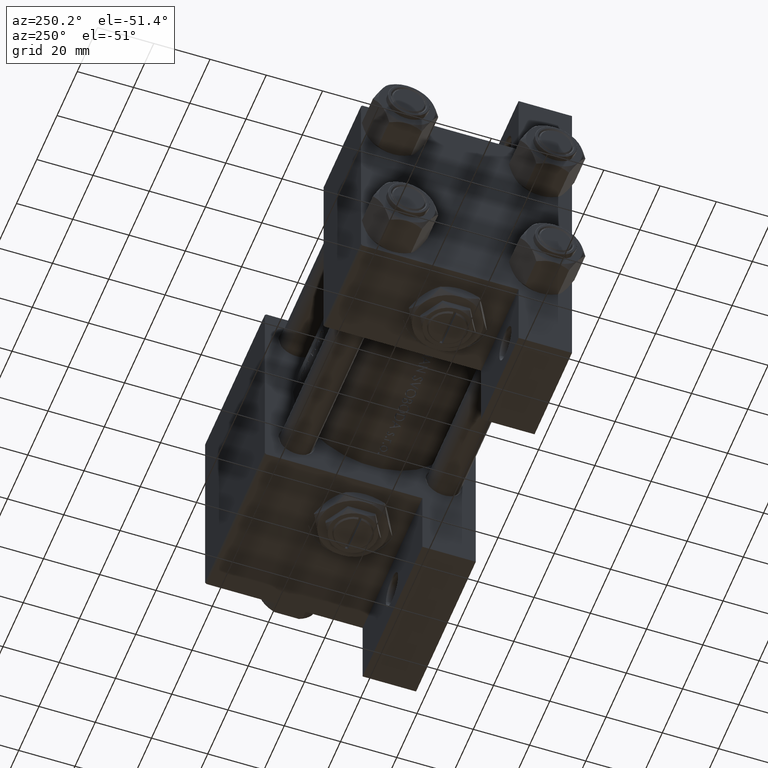
[diagram: clean part render]
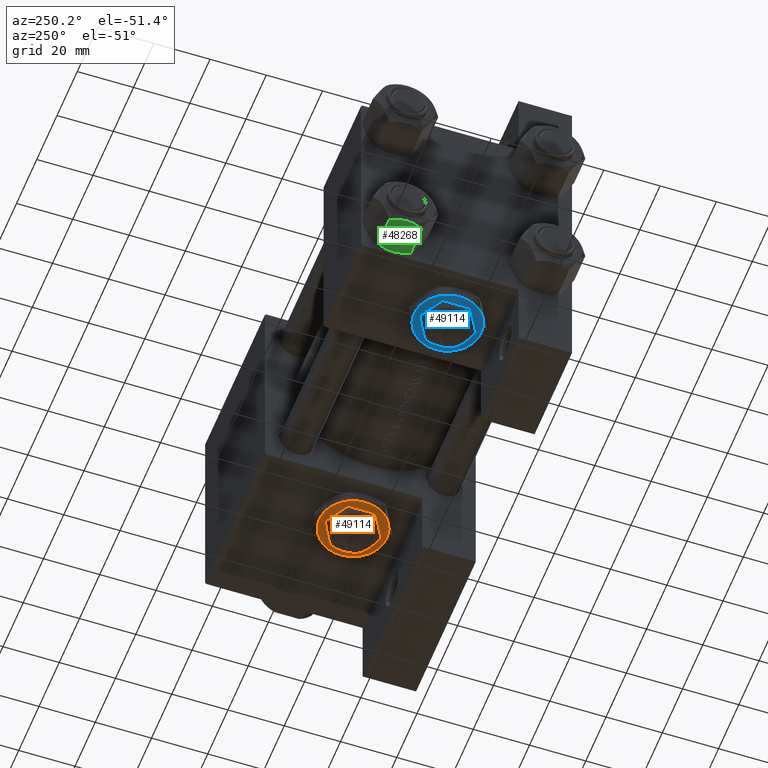
[diagram: same view with three faces highlighted in distinct colors, each labeled with its STEP entity id]
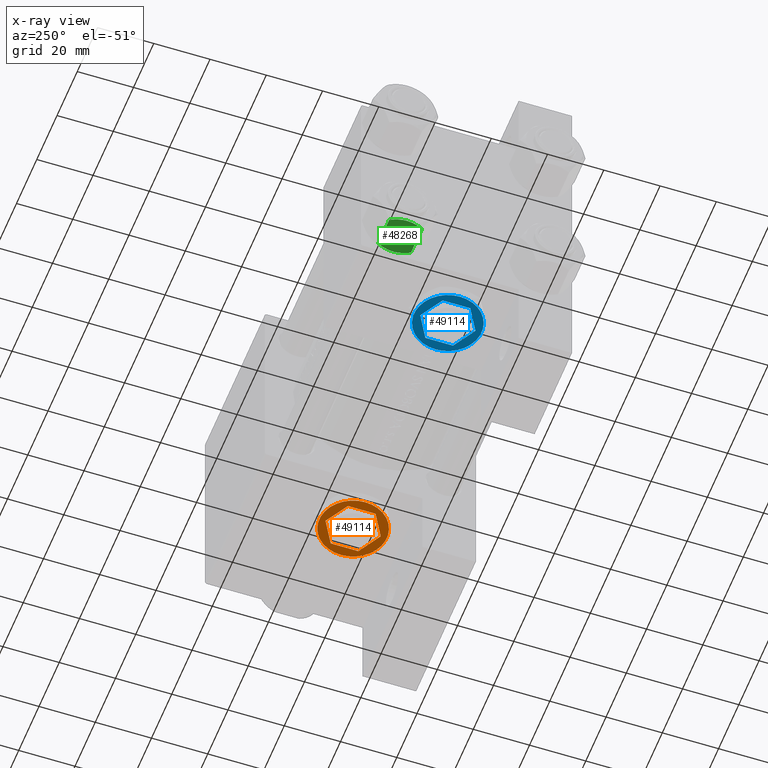
[diagram: x-ray of the same camera — body ghosted, the three highlighted faces saturated]
A machine part, auxiliary view with three faces highlighted in distinct colors.
The next image is the same camera in x-ray (body ghosted, the three faces saturated) — at least one of them is partly hidden behind the body in this view.
Their STEP definitions:

[orange] entity #49114 — the highlighted planar face has unit normal (0, 0, -1).
#66 = ORIENTED_EDGE ( 'NONE', *, *, #16778, .F. ) ;
#1803 = ORIENTED_EDGE ( 'NONE', *, *, #47435, .T. ) ;
#2400 = CIRCLE ( 'NONE', #22422, 12.00000000000000178 ) ;
#2935 = CARTESIAN_POINT ( 'NONE',  ( -8.500000000000000000, 4.907477288111818048, 4.299999999999999822 ) ) ;
#3061 = ORIENTED_EDGE ( 'NONE', *, *, #17577, .T. ) ;
#3365 = CARTESIAN_POINT ( 'NONE',  ( 8.500000000000000000, -4.907477288111819824, 4.299999999999999822 ) ) ;
#4009 = EDGE_CURVE ( 'NONE', #39390, #40871, #25955, .T. ) ;
#4302 = EDGE_CURVE ( 'NONE', #8385, #39390, #48737, .T. ) ;
#4424 = VERTEX_POINT ( 'NONE', #19640 ) ;
#5140 = LINE ( 'NONE', #12623, #43508 ) ;
#5230 = AXIS2_PLACEMENT_3D ( 'NONE', #39682, #5372, #20631 ) ;
#5372 = DIRECTION ( 'NONE',  ( 0.000000000000000000, 0.000000000000000000, 1.000000000000000000 ) ) ;
#5854 = DIRECTION ( 'NONE',  ( 1.000000000000000000, 0.000000000000000000, 0.000000000000000000 ) ) ;
#5898 = EDGE_LOOP ( 'NONE', ( #19397, #47857, #30561, #3061, #1803, #6181 ) ) ;
#5953 = CARTESIAN_POINT ( 'NONE',  ( 0.000000000000000000, 9.814954576223637872, 4.299999999999999822 ) ) ;
#6181 = ORIENTED_EDGE ( 'NONE', *, *, #10807, .T. ) ;
#6572 = DIRECTION ( 'NONE',  ( 0.000000000000000000, 0.000000000000000000, 1.000000000000000000 ) ) ;
#6989 = VERTEX_POINT ( 'NONE', #22276 ) ;
#8371 = EDGE_CURVE ( 'NONE', #4424, #10817, #9674, .T. ) ;
#8385 = VERTEX_POINT ( 'NONE', #5953 ) ;
#8622 = VERTEX_POINT ( 'NONE', #26419 ) ;
#9073 = CARTESIAN_POINT ( 'NONE',  ( -6.000000000000001776, 10.39230484541326405, 4.299999999999999822 ) ) ;
#9353 = CARTESIAN_POINT ( 'NONE',  ( 11.99999999999999645, 3.004629197474318063E-15, 4.299999999999999822 ) ) ;
#9674 = CIRCLE ( 'NONE', #23228, 12.00000000000000178 ) ;
#10487 = ORIENTED_EDGE ( 'NONE', *, *, #4009, .F. ) ;
#10807 = EDGE_CURVE ( 'NONE', #45963, #4424, #2400, .T. ) ;
#10817 = VERTEX_POINT ( 'NONE', #9353 ) ;
#10886 = DIRECTION ( 'NONE',  ( -0.8660254037844385966, -0.5000000000000000000, 0.000000000000000000 ) ) ;
#11208 = CARTESIAN_POINT ( 'NONE',  ( 6.000000000000000888, 10.39230484541326582, 4.299999999999999822 ) ) ;
#12623 = CARTESIAN_POINT ( 'NONE',  ( -8.500000000000000000, -4.907477288111819824, 4.299999999999999822 ) ) ;
#13036 = DIRECTION ( 'NONE',  ( 1.000000000000000000, 0.000000000000000000, 0.000000000000000000 ) ) ;
#15376 = CARTESIAN_POINT ( 'NONE',  ( 8.499999999999996447, 4.907477288111821601, 4.299999999999999822 ) ) ;
#15554 = AXIS2_PLACEMENT_3D ( 'NONE', #16597, #32361, #17350 ) ;
#16597 = CARTESIAN_POINT ( 'NONE',  ( 0.000000000000000000, 0.000000000000000000, 4.299999999999999822 ) ) ;
#16778 = EDGE_CURVE ( 'NONE', #8622, #8385, #30886, .T. ) ;
#17350 = DIRECTION ( 'NONE',  ( 1.000000000000000000, 0.000000000000000000, 0.000000000000000000 ) ) ;
#17577 = EDGE_CURVE ( 'NONE', #19569, #6989, #20278, .T. ) ;
#17871 = AXIS2_PLACEMENT_3D ( 'NONE', #49075, #31205, #23955 ) ;
#18660 = VERTEX_POINT ( 'NONE', #29433 ) ;
#18953 = CARTESIAN_POINT ( 'NONE',  ( -8.500000000000000000, -4.907477288111819824, 4.299999999999999822 ) ) ;
#19228 = EDGE_CURVE ( 'NONE', #40871, #18660, #5140, .T. ) ;
#19397 = ORIENTED_EDGE ( 'NONE', *, *, #8371, .T. ) ;
#19569 = VERTEX_POINT ( 'NONE', #9073 ) ;
#19640 = CARTESIAN_POINT ( 'NONE',  ( 5.999999999999998224, -10.39230484541326760, 4.299999999999999822 ) ) ;
#20278 = CIRCLE ( 'NONE', #17871, 12.00000000000000178 ) ;
#20631 = DIRECTION ( 'NONE',  ( 1.000000000000000000, 0.000000000000000000, -0.000000000000000000 ) ) ;
#20825 = LINE ( 'NONE', #36350, #25907 ) ;
#22040 = EDGE_CURVE ( 'NONE', #24520, #19569, #24443, .T. ) ;
#22276 = CARTESIAN_POINT ( 'NONE',  ( -12.00000000000000178, 0.000000000000000000, 4.299999999999999822 ) ) ;
#22422 = AXIS2_PLACEMENT_3D ( 'NONE', #29335, #6572, #5854 ) ;
#22925 = CARTESIAN_POINT ( 'NONE',  ( -6.000000000000000000, -10.39230484541326582, 4.299999999999999822 ) ) ;
#23171 = EDGE_CURVE ( 'NONE', #18660, #45886, #20825, .T. ) ;
#23228 = AXIS2_PLACEMENT_3D ( 'NONE', #35496, #43040, #34990 ) ;
#23410 = VECTOR ( 'NONE', #34656, 1000.000000000000114 ) ;
#23875 = FACE_BOUND ( 'NONE', #38569, .T. ) ;
#23931 = ORIENTED_EDGE ( 'NONE', *, *, #4302, .F. ) ;
#23955 = DIRECTION ( 'NONE',  ( 1.000000000000000000, 0.000000000000000000, 0.000000000000000000 ) ) ;
#24378 = FACE_OUTER_BOUND ( 'NONE', #5898, .T. ) ;
#24443 = CIRCLE ( 'NONE', #43666, 12.00000000000000178 ) ;
#24520 = VERTEX_POINT ( 'NONE', #11208 ) ;
#24566 = DIRECTION ( 'NONE',  ( 0.000000000000000000, 0.000000000000000000, 1.000000000000000000 ) ) ;
#25907 = VECTOR ( 'NONE', #47901, 1000.000000000000114 ) ;
#25955 = LINE ( 'NONE', #2935, #38300 ) ;
#26045 = AXIS2_PLACEMENT_3D ( 'NONE', #45426, #39984, #39747 ) ;
#26419 = CARTESIAN_POINT ( 'NONE',  ( 8.499999999999996447, 4.907477288111821601, 4.299999999999999822 ) ) ;
#26802 = CARTESIAN_POINT ( 'NONE',  ( -8.500000000000000000, 4.907477288111818048, 4.299999999999999822 ) ) ;
#27001 = EDGE_CURVE ( 'NONE', #10817, #24520, #37254, .T. ) ;
#27894 = DIRECTION ( 'NONE',  ( 0.8660254037844385966, -0.5000000000000001110, 0.000000000000000000 ) ) ;
#29335 = CARTESIAN_POINT ( 'NONE',  ( 0.000000000000000000, 0.000000000000000000, 4.299999999999999822 ) ) ;
#29433 = CARTESIAN_POINT ( 'NONE',  ( -2.644623992720612091E-15, -9.814954576223637872, 4.299999999999999822 ) ) ;
#29948 = DIRECTION ( 'NONE',  ( 0.000000000000000000, -1.000000000000000000, 0.000000000000000000 ) ) ;
#30561 = ORIENTED_EDGE ( 'NONE', *, *, #22040, .T. ) ;
#30862 = LINE ( 'NONE', #3365, #36885 ) ;
#30886 = LINE ( 'NONE', #15376, #23410 ) ;
#31205 = DIRECTION ( 'NONE',  ( 0.000000000000000000, 0.000000000000000000, 1.000000000000000000 ) ) ;
#32361 = DIRECTION ( 'NONE',  ( 0.000000000000000000, 0.000000000000000000, 1.000000000000000000 ) ) ;
#34656 = DIRECTION ( 'NONE',  ( -0.8660254037844387076, 0.4999999999999998890, 0.000000000000000000 ) ) ;
#34990 = DIRECTION ( 'NONE',  ( 1.000000000000000000, 0.000000000000000000, 0.000000000000000000 ) ) ;
#35496 = CARTESIAN_POINT ( 'NONE',  ( 0.000000000000000000, 0.000000000000000000, 4.299999999999999822 ) ) ;
#36350 = CARTESIAN_POINT ( 'NONE',  ( -2.644623992720612091E-15, -9.814954576223637872, 4.299999999999999822 ) ) ;
#36885 = VECTOR ( 'NONE', #48980, 1000.000000000000000 ) ;
#37186 = CARTESIAN_POINT ( 'NONE',  ( 0.000000000000000000, 9.814954576223637872, 4.299999999999999822 ) ) ;
#37254 = CIRCLE ( 'NONE', #26045, 12.00000000000000178 ) ;
#37515 = VECTOR ( 'NONE', #10886, 1000.000000000000227 ) ;
#38300 = VECTOR ( 'NONE', #29948, 1000.000000000000000 ) ;
#38569 = EDGE_LOOP ( 'NONE', ( #23931, #66, #46826, #42424, #45372, #10487 ) ) ;
#39082 = EDGE_CURVE ( 'NONE', #45886, #8622, #30862, .T. ) ;
#39170 = PLANE ( 'NONE',  #5230 ) ;
#39390 = VERTEX_POINT ( 'NONE', #26802 ) ;
#39682 = CARTESIAN_POINT ( 'NONE',  ( 0.000000000000000000, 0.000000000000000000, 4.299999999999999822 ) ) ;
#39747 = DIRECTION ( 'NONE',  ( 1.000000000000000000, 0.000000000000000000, 0.000000000000000000 ) ) ;
#39984 = DIRECTION ( 'NONE',  ( 0.000000000000000000, 0.000000000000000000, 1.000000000000000000 ) ) ;
#40871 = VERTEX_POINT ( 'NONE', #18953 ) ;
#42424 = ORIENTED_EDGE ( 'NONE', *, *, #23171, .F. ) ;
#42809 = CIRCLE ( 'NONE', #15554, 12.00000000000000178 ) ;
#43040 = DIRECTION ( 'NONE',  ( 0.000000000000000000, 0.000000000000000000, 1.000000000000000000 ) ) ;
#43508 = VECTOR ( 'NONE', #27894, 1000.000000000000114 ) ;
#43666 = AXIS2_PLACEMENT_3D ( 'NONE', #47889, #24566, #13036 ) ;
#45372 = ORIENTED_EDGE ( 'NONE', *, *, #19228, .F. ) ;
#45426 = CARTESIAN_POINT ( 'NONE',  ( 0.000000000000000000, 0.000000000000000000, 4.299999999999999822 ) ) ;
#45744 = CARTESIAN_POINT ( 'NONE',  ( 8.500000000000000000, -4.907477288111819824, 4.299999999999999822 ) ) ;
#45886 = VERTEX_POINT ( 'NONE', #45744 ) ;
#45963 = VERTEX_POINT ( 'NONE', #22925 ) ;
#46826 = ORIENTED_EDGE ( 'NONE', *, *, #39082, .F. ) ;
#47435 = EDGE_CURVE ( 'NONE', #6989, #45963, #42809, .T. ) ;
#47857 = ORIENTED_EDGE ( 'NONE', *, *, #27001, .T. ) ;
#47889 = CARTESIAN_POINT ( 'NONE',  ( 0.000000000000000000, 0.000000000000000000, 4.299999999999999822 ) ) ;
#47901 = DIRECTION ( 'NONE',  ( 0.8660254037844388186, 0.4999999999999997224, 0.000000000000000000 ) ) ;
#48737 = LINE ( 'NONE', #37186, #37515 ) ;
#48980 = DIRECTION ( 'NONE',  ( -3.534857879381550604E-16, 1.000000000000000000, 0.000000000000000000 ) ) ;
#49075 = CARTESIAN_POINT ( 'NONE',  ( 0.000000000000000000, 0.000000000000000000, 4.299999999999999822 ) ) ;
#49114 = ADVANCED_FACE ( 'NONE', ( #24378, #23875 ), #39170, .T. ) ;

[blue] entity #49114 — the highlighted planar face has unit normal (0, 0, -1).
#66 = ORIENTED_EDGE ( 'NONE', *, *, #16778, .F. ) ;
#1803 = ORIENTED_EDGE ( 'NONE', *, *, #47435, .T. ) ;
#2400 = CIRCLE ( 'NONE', #22422, 12.00000000000000178 ) ;
#2935 = CARTESIAN_POINT ( 'NONE',  ( -8.500000000000000000, 4.907477288111818048, 4.299999999999999822 ) ) ;
#3061 = ORIENTED_EDGE ( 'NONE', *, *, #17577, .T. ) ;
#3365 = CARTESIAN_POINT ( 'NONE',  ( 8.500000000000000000, -4.907477288111819824, 4.299999999999999822 ) ) ;
#4009 = EDGE_CURVE ( 'NONE', #39390, #40871, #25955, .T. ) ;
#4302 = EDGE_CURVE ( 'NONE', #8385, #39390, #48737, .T. ) ;
#4424 = VERTEX_POINT ( 'NONE', #19640 ) ;
#5140 = LINE ( 'NONE', #12623, #43508 ) ;
#5230 = AXIS2_PLACEMENT_3D ( 'NONE', #39682, #5372, #20631 ) ;
#5372 = DIRECTION ( 'NONE',  ( 0.000000000000000000, 0.000000000000000000, 1.000000000000000000 ) ) ;
#5854 = DIRECTION ( 'NONE',  ( 1.000000000000000000, 0.000000000000000000, 0.000000000000000000 ) ) ;
#5898 = EDGE_LOOP ( 'NONE', ( #19397, #47857, #30561, #3061, #1803, #6181 ) ) ;
#5953 = CARTESIAN_POINT ( 'NONE',  ( 0.000000000000000000, 9.814954576223637872, 4.299999999999999822 ) ) ;
#6181 = ORIENTED_EDGE ( 'NONE', *, *, #10807, .T. ) ;
#6572 = DIRECTION ( 'NONE',  ( 0.000000000000000000, 0.000000000000000000, 1.000000000000000000 ) ) ;
#6989 = VERTEX_POINT ( 'NONE', #22276 ) ;
#8371 = EDGE_CURVE ( 'NONE', #4424, #10817, #9674, .T. ) ;
#8385 = VERTEX_POINT ( 'NONE', #5953 ) ;
#8622 = VERTEX_POINT ( 'NONE', #26419 ) ;
#9073 = CARTESIAN_POINT ( 'NONE',  ( -6.000000000000001776, 10.39230484541326405, 4.299999999999999822 ) ) ;
#9353 = CARTESIAN_POINT ( 'NONE',  ( 11.99999999999999645, 3.004629197474318063E-15, 4.299999999999999822 ) ) ;
#9674 = CIRCLE ( 'NONE', #23228, 12.00000000000000178 ) ;
#10487 = ORIENTED_EDGE ( 'NONE', *, *, #4009, .F. ) ;
#10807 = EDGE_CURVE ( 'NONE', #45963, #4424, #2400, .T. ) ;
#10817 = VERTEX_POINT ( 'NONE', #9353 ) ;
#10886 = DIRECTION ( 'NONE',  ( -0.8660254037844385966, -0.5000000000000000000, 0.000000000000000000 ) ) ;
#11208 = CARTESIAN_POINT ( 'NONE',  ( 6.000000000000000888, 10.39230484541326582, 4.299999999999999822 ) ) ;
#12623 = CARTESIAN_POINT ( 'NONE',  ( -8.500000000000000000, -4.907477288111819824, 4.299999999999999822 ) ) ;
#13036 = DIRECTION ( 'NONE',  ( 1.000000000000000000, 0.000000000000000000, 0.000000000000000000 ) ) ;
#15376 = CARTESIAN_POINT ( 'NONE',  ( 8.499999999999996447, 4.907477288111821601, 4.299999999999999822 ) ) ;
#15554 = AXIS2_PLACEMENT_3D ( 'NONE', #16597, #32361, #17350 ) ;
#16597 = CARTESIAN_POINT ( 'NONE',  ( 0.000000000000000000, 0.000000000000000000, 4.299999999999999822 ) ) ;
#16778 = EDGE_CURVE ( 'NONE', #8622, #8385, #30886, .T. ) ;
#17350 = DIRECTION ( 'NONE',  ( 1.000000000000000000, 0.000000000000000000, 0.000000000000000000 ) ) ;
#17577 = EDGE_CURVE ( 'NONE', #19569, #6989, #20278, .T. ) ;
#17871 = AXIS2_PLACEMENT_3D ( 'NONE', #49075, #31205, #23955 ) ;
#18660 = VERTEX_POINT ( 'NONE', #29433 ) ;
#18953 = CARTESIAN_POINT ( 'NONE',  ( -8.500000000000000000, -4.907477288111819824, 4.299999999999999822 ) ) ;
#19228 = EDGE_CURVE ( 'NONE', #40871, #18660, #5140, .T. ) ;
#19397 = ORIENTED_EDGE ( 'NONE', *, *, #8371, .T. ) ;
#19569 = VERTEX_POINT ( 'NONE', #9073 ) ;
#19640 = CARTESIAN_POINT ( 'NONE',  ( 5.999999999999998224, -10.39230484541326760, 4.299999999999999822 ) ) ;
#20278 = CIRCLE ( 'NONE', #17871, 12.00000000000000178 ) ;
#20631 = DIRECTION ( 'NONE',  ( 1.000000000000000000, 0.000000000000000000, -0.000000000000000000 ) ) ;
#20825 = LINE ( 'NONE', #36350, #25907 ) ;
#22040 = EDGE_CURVE ( 'NONE', #24520, #19569, #24443, .T. ) ;
#22276 = CARTESIAN_POINT ( 'NONE',  ( -12.00000000000000178, 0.000000000000000000, 4.299999999999999822 ) ) ;
#22422 = AXIS2_PLACEMENT_3D ( 'NONE', #29335, #6572, #5854 ) ;
#22925 = CARTESIAN_POINT ( 'NONE',  ( -6.000000000000000000, -10.39230484541326582, 4.299999999999999822 ) ) ;
#23171 = EDGE_CURVE ( 'NONE', #18660, #45886, #20825, .T. ) ;
#23228 = AXIS2_PLACEMENT_3D ( 'NONE', #35496, #43040, #34990 ) ;
#23410 = VECTOR ( 'NONE', #34656, 1000.000000000000114 ) ;
#23875 = FACE_BOUND ( 'NONE', #38569, .T. ) ;
#23931 = ORIENTED_EDGE ( 'NONE', *, *, #4302, .F. ) ;
#23955 = DIRECTION ( 'NONE',  ( 1.000000000000000000, 0.000000000000000000, 0.000000000000000000 ) ) ;
#24378 = FACE_OUTER_BOUND ( 'NONE', #5898, .T. ) ;
#24443 = CIRCLE ( 'NONE', #43666, 12.00000000000000178 ) ;
#24520 = VERTEX_POINT ( 'NONE', #11208 ) ;
#24566 = DIRECTION ( 'NONE',  ( 0.000000000000000000, 0.000000000000000000, 1.000000000000000000 ) ) ;
#25907 = VECTOR ( 'NONE', #47901, 1000.000000000000114 ) ;
#25955 = LINE ( 'NONE', #2935, #38300 ) ;
#26045 = AXIS2_PLACEMENT_3D ( 'NONE', #45426, #39984, #39747 ) ;
#26419 = CARTESIAN_POINT ( 'NONE',  ( 8.499999999999996447, 4.907477288111821601, 4.299999999999999822 ) ) ;
#26802 = CARTESIAN_POINT ( 'NONE',  ( -8.500000000000000000, 4.907477288111818048, 4.299999999999999822 ) ) ;
#27001 = EDGE_CURVE ( 'NONE', #10817, #24520, #37254, .T. ) ;
#27894 = DIRECTION ( 'NONE',  ( 0.8660254037844385966, -0.5000000000000001110, 0.000000000000000000 ) ) ;
#29335 = CARTESIAN_POINT ( 'NONE',  ( 0.000000000000000000, 0.000000000000000000, 4.299999999999999822 ) ) ;
#29433 = CARTESIAN_POINT ( 'NONE',  ( -2.644623992720612091E-15, -9.814954576223637872, 4.299999999999999822 ) ) ;
#29948 = DIRECTION ( 'NONE',  ( 0.000000000000000000, -1.000000000000000000, 0.000000000000000000 ) ) ;
#30561 = ORIENTED_EDGE ( 'NONE', *, *, #22040, .T. ) ;
#30862 = LINE ( 'NONE', #3365, #36885 ) ;
#30886 = LINE ( 'NONE', #15376, #23410 ) ;
#31205 = DIRECTION ( 'NONE',  ( 0.000000000000000000, 0.000000000000000000, 1.000000000000000000 ) ) ;
#32361 = DIRECTION ( 'NONE',  ( 0.000000000000000000, 0.000000000000000000, 1.000000000000000000 ) ) ;
#34656 = DIRECTION ( 'NONE',  ( -0.8660254037844387076, 0.4999999999999998890, 0.000000000000000000 ) ) ;
#34990 = DIRECTION ( 'NONE',  ( 1.000000000000000000, 0.000000000000000000, 0.000000000000000000 ) ) ;
#35496 = CARTESIAN_POINT ( 'NONE',  ( 0.000000000000000000, 0.000000000000000000, 4.299999999999999822 ) ) ;
#36350 = CARTESIAN_POINT ( 'NONE',  ( -2.644623992720612091E-15, -9.814954576223637872, 4.299999999999999822 ) ) ;
#36885 = VECTOR ( 'NONE', #48980, 1000.000000000000000 ) ;
#37186 = CARTESIAN_POINT ( 'NONE',  ( 0.000000000000000000, 9.814954576223637872, 4.299999999999999822 ) ) ;
#37254 = CIRCLE ( 'NONE', #26045, 12.00000000000000178 ) ;
#37515 = VECTOR ( 'NONE', #10886, 1000.000000000000227 ) ;
#38300 = VECTOR ( 'NONE', #29948, 1000.000000000000000 ) ;
#38569 = EDGE_LOOP ( 'NONE', ( #23931, #66, #46826, #42424, #45372, #10487 ) ) ;
#39082 = EDGE_CURVE ( 'NONE', #45886, #8622, #30862, .T. ) ;
#39170 = PLANE ( 'NONE',  #5230 ) ;
#39390 = VERTEX_POINT ( 'NONE', #26802 ) ;
#39682 = CARTESIAN_POINT ( 'NONE',  ( 0.000000000000000000, 0.000000000000000000, 4.299999999999999822 ) ) ;
#39747 = DIRECTION ( 'NONE',  ( 1.000000000000000000, 0.000000000000000000, 0.000000000000000000 ) ) ;
#39984 = DIRECTION ( 'NONE',  ( 0.000000000000000000, 0.000000000000000000, 1.000000000000000000 ) ) ;
#40871 = VERTEX_POINT ( 'NONE', #18953 ) ;
#42424 = ORIENTED_EDGE ( 'NONE', *, *, #23171, .F. ) ;
#42809 = CIRCLE ( 'NONE', #15554, 12.00000000000000178 ) ;
#43040 = DIRECTION ( 'NONE',  ( 0.000000000000000000, 0.000000000000000000, 1.000000000000000000 ) ) ;
#43508 = VECTOR ( 'NONE', #27894, 1000.000000000000114 ) ;
#43666 = AXIS2_PLACEMENT_3D ( 'NONE', #47889, #24566, #13036 ) ;
#45372 = ORIENTED_EDGE ( 'NONE', *, *, #19228, .F. ) ;
#45426 = CARTESIAN_POINT ( 'NONE',  ( 0.000000000000000000, 0.000000000000000000, 4.299999999999999822 ) ) ;
#45744 = CARTESIAN_POINT ( 'NONE',  ( 8.500000000000000000, -4.907477288111819824, 4.299999999999999822 ) ) ;
#45886 = VERTEX_POINT ( 'NONE', #45744 ) ;
#45963 = VERTEX_POINT ( 'NONE', #22925 ) ;
#46826 = ORIENTED_EDGE ( 'NONE', *, *, #39082, .F. ) ;
#47435 = EDGE_CURVE ( 'NONE', #6989, #45963, #42809, .T. ) ;
#47857 = ORIENTED_EDGE ( 'NONE', *, *, #27001, .T. ) ;
#47889 = CARTESIAN_POINT ( 'NONE',  ( 0.000000000000000000, 0.000000000000000000, 4.299999999999999822 ) ) ;
#47901 = DIRECTION ( 'NONE',  ( 0.8660254037844388186, 0.4999999999999997224, 0.000000000000000000 ) ) ;
#48737 = LINE ( 'NONE', #37186, #37515 ) ;
#48980 = DIRECTION ( 'NONE',  ( -3.534857879381550604E-16, 1.000000000000000000, 0.000000000000000000 ) ) ;
#49075 = CARTESIAN_POINT ( 'NONE',  ( 0.000000000000000000, 0.000000000000000000, 4.299999999999999822 ) ) ;
#49114 = ADVANCED_FACE ( 'NONE', ( #24378, #23875 ), #39170, .T. ) ;

[green] entity #48268 — the highlighted planar face has unit normal (0, -0, 1).
#577 = VERTEX_POINT ( 'NONE', #32331 ) ;
#1025 = CARTESIAN_POINT ( 'NONE',  ( -0.2543996698847483806, -10.06321519197517667, -14.00000000000000355 ) ) ;
#2329 = EDGE_CURVE ( 'NONE', #12649, #49324, #38340, .T. ) ;
#2741 = VERTEX_POINT ( 'NONE', #4769 ) ;
#4769 = CARTESIAN_POINT ( 'NONE',  ( 5.810000000000000497, -10.06321519197517667, -12.44321519197518633 ) ) ;
#4923 = VERTEX_POINT ( 'NONE', #29707 ) ;
#5054 = CARTESIAN_POINT ( 'NONE',  ( -2.508586450168039494, -10.06321519197517844, -13.70242473679676998 ) ) ;
#6201 = EDGE_LOOP ( 'NONE', ( #20853, #21488, #10001, #48672, #29982, #7404 ) ) ;
#6341 = DIRECTION ( 'NONE',  ( -0.000000000000000000, -0.000000000000000000, 1.000000000000000000 ) ) ;
#6359 = CARTESIAN_POINT ( 'NONE',  ( 3.958929922320422179, -10.06321519197517489, -13.25786014976459803 ) ) ;
#6943 = CARTESIAN_POINT ( 'NONE',  ( 2.508586450168040383, -10.06321519197517667, -0.2975752632032270806 ) ) ;
#7345 = CARTESIAN_POINT ( 'NONE',  ( -5.810000000000000497, -10.06321519197517844, -1.556784808024815225 ) ) ;
#7404 = ORIENTED_EDGE ( 'NONE', *, *, #27170, .F. ) ;
#7997 = CARTESIAN_POINT ( 'NONE',  ( -5.810000000000000497, -10.06321519197517844, -12.44321519197518455 ) ) ;
#9546 = CARTESIAN_POINT ( 'NONE',  ( -1.018274738099085086, -10.06321519197517667, -13.95177257919929126 ) ) ;
#9821 = CARTESIAN_POINT ( 'NONE',  ( -3.958929922320422179, -10.06321519197517667, -0.7421398502353990789 ) ) ;
#10001 = ORIENTED_EDGE ( 'NONE', *, *, #10686, .F. ) ;
#10344 = CARTESIAN_POINT ( 'NONE',  ( 3.474497094393254049, -10.06321519197517667, -13.42730390989572697 ) ) ;
#10429 = CARTESIAN_POINT ( 'NONE',  ( 0.5112014849988887333, -10.06321519197517667, -0.009803979428911684807 ) ) ;
#10686 = EDGE_CURVE ( 'NONE', #49324, #4923, #21591, .T. ) ;
#10814 = VECTOR ( 'NONE', #6341, 1000.000000000000000 ) ;
#10936 = CARTESIAN_POINT ( 'NONE',  ( 0.2543996698847487137, -10.06321519197517844, 2.651777813537460036E-15 ) ) ;
#12649 = VERTEX_POINT ( 'NONE', #7345 ) ;
#12879 = VERTEX_POINT ( 'NONE', #7997 ) ;
#13579 = CARTESIAN_POINT ( 'NONE',  ( -5.810000000000000497, -10.06321519197517844, -14.00000000000000000 ) ) ;
#14336 = CARTESIAN_POINT ( 'NONE',  ( 2.013954290287967019, -10.06321519197517489, -13.84298883202400532 ) ) ;
#15218 = LINE ( 'NONE', #30722, #41870 ) ;
#17815 = CARTESIAN_POINT ( 'NONE',  ( -1.020132157807625450, -10.06321519197517667, 2.398797306624178560E-15 ) ) ;
#17945 = CARTESIAN_POINT ( 'NONE',  ( 4.908816193182379273, -10.06321519197517844, -1.106192904616004835 ) ) ;
#18189 = CARTESIAN_POINT ( 'NONE',  ( 3.960942496020602555, -10.06321519197517667, -0.7115728323610392980 ) ) ;
#20853 = ORIENTED_EDGE ( 'NONE', *, *, #45385, .F. ) ;
#21066 = CARTESIAN_POINT ( 'NONE',  ( -1.772424303831128478, -10.06321519197517489, -13.86611290782776251 ) ) ;
#21116 = CARTESIAN_POINT ( 'NONE',  ( 5.810000000000000497, -10.06321519197517667, -14.00000000000000000 ) ) ;
#21355 = PLANE ( 'NONE',  #46825 ) ;
#21488 = ORIENTED_EDGE ( 'NONE', *, *, #43752, .T. ) ;
#21591 = B_SPLINE_CURVE_WITH_KNOTS ( 'NONE', 3,
 ( #36984, #10936, #10429, #25224, #33452, #6943, #18189, #17945, #40520 ),
 .UNSPECIFIED., .F., .F.,
 ( 4, 2, 1, 2, 4 ),
 ( 0.02074012592819902620, 0.02149589804477579011, 0.02225167016135255402, 0.02376321439450608530, 0.02678630286081314441 ),
 .UNSPECIFIED. ) ;
#21866 = CARTESIAN_POINT ( 'NONE',  ( 5.359707691559676412, -10.06321519197517844, -12.66836134619534882 ) ) ;
#24843 = CARTESIAN_POINT ( 'NONE',  ( -3.474497094393253604, -10.06321519197517844, -0.5726960901042740248 ) ) ;
#25224 = CARTESIAN_POINT ( 'NONE',  ( 1.018274738099085086, -10.06321519197517311, -0.04822742080070722276 ) ) ;
#25610 = CARTESIAN_POINT ( 'NONE',  ( 1.020132157807625672, -10.06321519197517489, -14.00000000000000178 ) ) ;
#27170 = EDGE_CURVE ( 'NONE', #577, #12879, #33102, .T. ) ;
#28561 = CARTESIAN_POINT ( 'NONE',  ( -4.908816193182379273, -10.06321519197517667, -12.89380709538398939 ) ) ;
#29707 = CARTESIAN_POINT ( 'NONE',  ( 5.810000000000000497, -10.06321519197517667, -1.556784808024813671 ) ) ;
#29982 = ORIENTED_EDGE ( 'NONE', *, *, #49241, .F. ) ;
#30722 = CARTESIAN_POINT ( 'NONE',  ( 5.810000000000000497, -10.06321519197517667, -14.00000000000000000 ) ) ;
#31223 = DIRECTION ( 'NONE',  ( -0.000000000000000000, -0.000000000000000000, 1.000000000000000000 ) ) ;
#31567 = CARTESIAN_POINT ( 'NONE',  ( 1.502314598737159820E-15, -10.06321519197518022, -14.00000000000000000 ) ) ;
#32331 = CARTESIAN_POINT ( 'NONE',  ( 1.502314598737159820E-15, -10.06321519197518022, -14.00000000000000000 ) ) ;
#32836 = CARTESIAN_POINT ( 'NONE',  ( -5.359707691559672860, -10.06321519197517667, -1.331638653804653405 ) ) ;
#32856 = DIRECTION ( 'NONE',  ( -1.492877345935290102E-16, 1.000000000000000000, 0.000000000000000000 ) ) ;
#33102 = B_SPLINE_CURVE_WITH_KNOTS ( 'NONE', 3,
 ( #31567, #1025, #43379, #9546, #21066, #5054, #46909, #28561, #42894 ),
 .UNSPECIFIED., .F., .F.,
 ( 4, 2, 1, 2, 4 ),
 ( 0.02074012592819902620, 0.02149589804477579011, 0.02225167016135255749, 0.02376321439450608530, 0.02678630286081314441 ),
 .UNSPECIFIED. ) ;
#33452 = CARTESIAN_POINT ( 'NONE',  ( 1.772424303831127812, -10.06321519197517844, -0.1338870921722363216 ) ) ;
#36218 = B_SPLINE_CURVE_WITH_KNOTS ( 'NONE', 3,
 ( #48700, #21866, #44940, #6359, #10344, #14336, #25610, #48208 ),
 .UNSPECIFIED., .F., .F.,
 ( 4, 2, 2, 4 ),
 ( 0.01467889604968879332, 0.01619420351931635110, 0.01770951098894391063, 0.02074012592819902620 ),
 .UNSPECIFIED. ) ;
#36984 = CARTESIAN_POINT ( 'NONE',  ( 1.502314598737159820E-15, -10.06321519197518022, 0.000000000000000000 ) ) ;
#37130 = CARTESIAN_POINT ( 'NONE',  ( 1.502314598737159820E-15, -10.06321519197518022, 0.000000000000000000 ) ) ;
#38340 = B_SPLINE_CURVE_WITH_KNOTS ( 'NONE', 3,
 ( #44157, #32836, #44890, #9821, #24843, #40143, #17815, #40630 ),
 .UNSPECIFIED., .F., .F.,
 ( 4, 2, 2, 4 ),
 ( 0.01467889604968879505, 0.01619420351931635110, 0.01770951098894391063, 0.02074012592819902620 ),
 .UNSPECIFIED. ) ;
#39915 = FACE_OUTER_BOUND ( 'NONE', #6201, .T. ) ;
#40143 = CARTESIAN_POINT ( 'NONE',  ( -2.013954290287966575, -10.06321519197517844, -0.1570111679759964574 ) ) ;
#40520 = CARTESIAN_POINT ( 'NONE',  ( 5.810000000000000497, -10.06321519197517667, -1.556784808024813671 ) ) ;
#40630 = CARTESIAN_POINT ( 'NONE',  ( 1.502314598737159820E-15, -10.06321519197518022, 0.000000000000000000 ) ) ;
#41870 = VECTOR ( 'NONE', #31223, 1000.000000000000000 ) ;
#42894 = CARTESIAN_POINT ( 'NONE',  ( -5.810000000000000497, -10.06321519197517844, -12.44321519197518455 ) ) ;
#43379 = CARTESIAN_POINT ( 'NONE',  ( -0.5112014849988886223, -10.06321519197517489, -13.99019602057109068 ) ) ;
#43752 = EDGE_CURVE ( 'NONE', #2741, #4923, #15218, .T. ) ;
#44157 = CARTESIAN_POINT ( 'NONE',  ( -5.810000000000000497, -10.06321519197517844, -1.556784808024815225 ) ) ;
#44422 = DIRECTION ( 'NONE',  ( -1.000000000000000000, -1.492877345935290102E-16, 0.000000000000000000 ) ) ;
#44432 = LINE ( 'NONE', #13579, #10814 ) ;
#44890 = CARTESIAN_POINT ( 'NONE',  ( -4.900668367960797411, -10.06321519197517844, -1.121556683709773683 ) ) ;
#44940 = CARTESIAN_POINT ( 'NONE',  ( 4.900668367960796523, -10.06321519197517489, -12.87844331629023209 ) ) ;
#45385 = EDGE_CURVE ( 'NONE', #2741, #577, #36218, .T. ) ;
#46825 = AXIS2_PLACEMENT_3D ( 'NONE', #21116, #32856, #44422 ) ;
#46909 = CARTESIAN_POINT ( 'NONE',  ( -3.960942496020602555, -10.06321519197517667, -13.28842716763895737 ) ) ;
#48208 = CARTESIAN_POINT ( 'NONE',  ( 1.502314598737159820E-15, -10.06321519197518022, -14.00000000000000000 ) ) ;
#48268 = ADVANCED_FACE ( 'NONE', ( #39915 ), #21355, .F. ) ;
#48672 = ORIENTED_EDGE ( 'NONE', *, *, #2329, .F. ) ;
#48700 = CARTESIAN_POINT ( 'NONE',  ( 5.810000000000000497, -10.06321519197517667, -12.44321519197518633 ) ) ;
#49241 = EDGE_CURVE ( 'NONE', #12879, #12649, #44432, .T. ) ;
#49324 = VERTEX_POINT ( 'NONE', #37130 ) ;